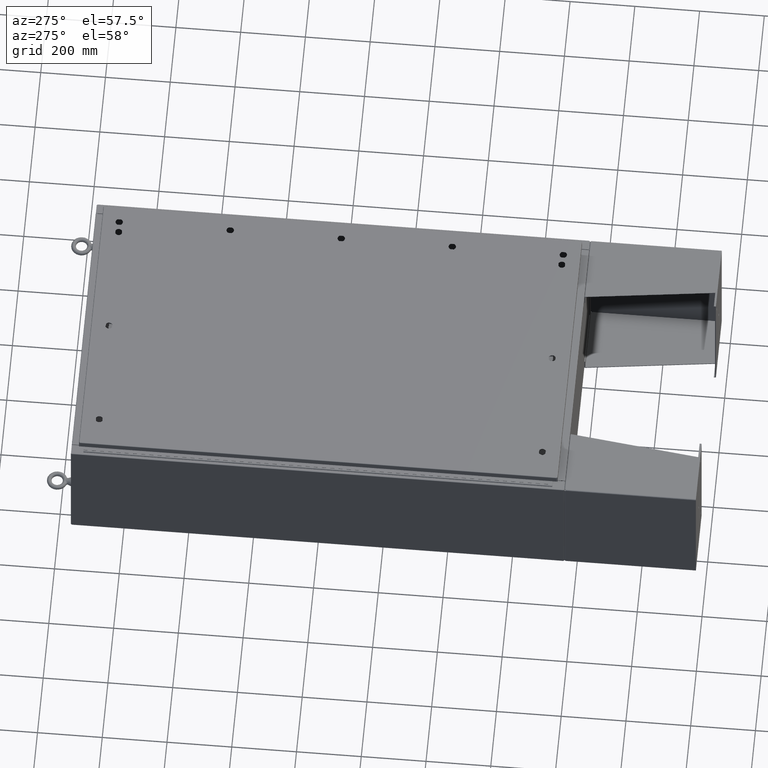
[diagram: clean part render]
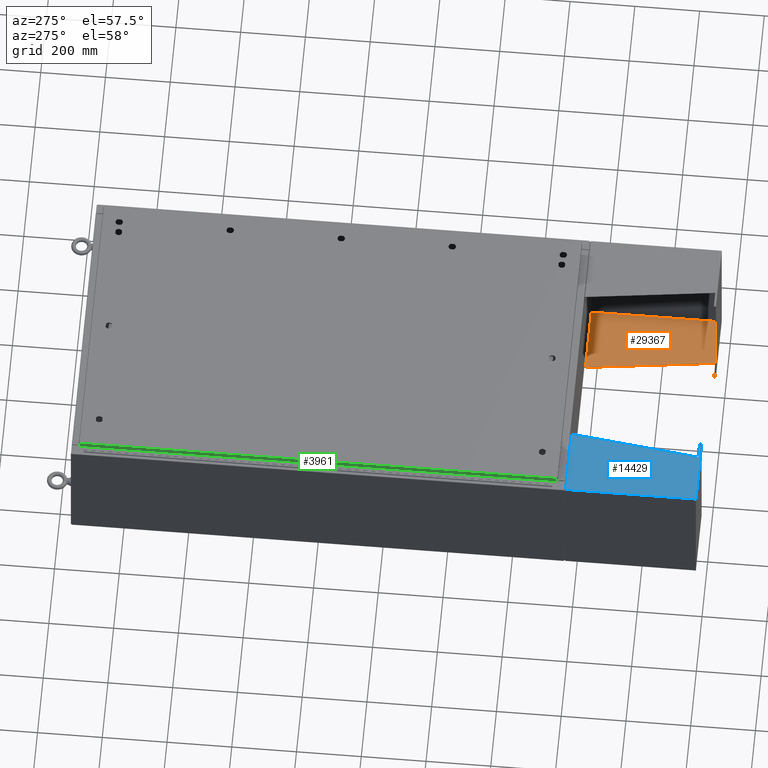
[diagram: same view with three faces highlighted in distinct colors, each labeled with its STEP entity id]
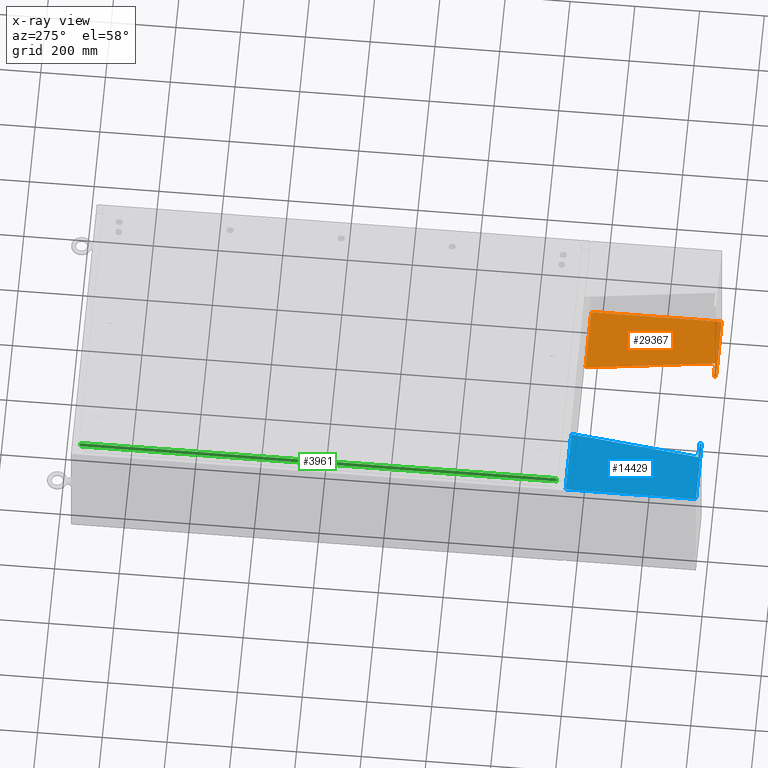
[diagram: x-ray of the same camera — body ghosted, the three highlighted faces saturated]
A machine part, auxiliary view with three faces highlighted in distinct colors.
The next image is the same camera in x-ray (body ghosted, the three faces saturated) — at least one of them is partly hidden behind the body in this view.
Their STEP definitions:

[orange] entity #29367 — the highlighted planar face has unit normal (-0, 0, 1).
#1846 = VECTOR ( 'NONE', #28815, 39.37007874015748100 ) ;
#5492 = VECTOR ( 'NONE', #42573, 39.37007874015748100 ) ;
#12509 = DIRECTION ( 'NONE',  ( -3.550958521948298200E-015, -0.0000000000000000000, 1.000000000000000000 ) ) ;
#14444 = EDGE_CURVE ( 'NONE', #19746, #62508, #41747, .T. ) ;
#14600 = VECTOR ( 'NONE', #58069, 39.37007874015748100 ) ;
#15079 = ORIENTED_EDGE ( 'NONE', *, *, #18576, .F. ) ;
#15661 = ORIENTED_EDGE ( 'NONE', *, *, #36336, .F. ) ;
#18209 = CARTESIAN_POINT ( 'NONE',  ( -7.896000000000027400, 8.000000000000001800, 8.000999999999999400 ) ) ;
#18576 = EDGE_CURVE ( 'NONE', #28031, #45724, #38566, .T. ) ;
#19099 = CARTESIAN_POINT ( 'NONE',  ( -7.896000000000027400, -7.749999999999999100, 8.001000000000006600 ) ) ;
#19685 = CARTESIAN_POINT ( 'NONE',  ( -7.896000000000027400, -7.749999999999999100, 8.001000000000006600 ) ) ;
#19746 = VERTEX_POINT ( 'NONE', #48947 ) ;
#22287 = DIRECTION ( 'NONE',  ( 0.0000000000000000000, 0.0000000000000000000, -1.000000000000000000 ) ) ;
#22518 = EDGE_LOOP ( 'NONE', ( #24888, #15661, #37722, #33450, #15079, #53706 ) ) ;
#23055 = DIRECTION ( 'NONE',  ( 3.550958521948298200E-015, 0.0000000000000000000, -1.000000000000000000 ) ) ;
#24888 = ORIENTED_EDGE ( 'NONE', *, *, #14444, .F. ) ;
#26339 = VERTEX_POINT ( 'NONE', #46697 ) ;
#26830 = CARTESIAN_POINT ( 'NONE',  ( -7.896000000000027400, -7.999999999999999100, 8.000999999999999400 ) ) ;
#28031 = VERTEX_POINT ( 'NONE', #61387 ) ;
#28815 = DIRECTION ( 'NONE',  ( 3.550958521948298200E-015, 0.0000000000000000000, -1.000000000000000000 ) ) ;
#29367 = ADVANCED_FACE ( 'NONE', ( #39105 ), #42258, .T. ) ;
#33342 = EDGE_CURVE ( 'NONE', #45724, #26339, #58153, .T. ) ;
#33450 = ORIENTED_EDGE ( 'NONE', *, *, #33342, .F. ) ;
#35210 = VECTOR ( 'NONE', #22287, 39.37007874015748100 ) ;
#36336 = EDGE_CURVE ( 'NONE', #51505, #19746, #38716, .T. ) ;
#37722 = ORIENTED_EDGE ( 'NONE', *, *, #60582, .F. ) ;
#38566 = LINE ( 'NONE', #41980, #61380 ) ;
#38716 = LINE ( 'NONE', #19099, #1846 ) ;
#39105 = FACE_OUTER_BOUND ( 'NONE', #22518, .T. ) ;
#39670 = DIRECTION ( 'NONE',  ( 0.0000000000000000000, -1.000000000000000000, 0.0000000000000000000 ) ) ;
#41512 = CARTESIAN_POINT ( 'NONE',  ( -7.896000000000013200, 7.857000000000001100, 8.000999999999999400 ) ) ;
#41747 = LINE ( 'NONE', #50449, #14600 ) ;
#41980 = CARTESIAN_POINT ( 'NONE',  ( -7.895999999999999000, 8.000000000000001800, 0.03900000000000031900 ) ) ;
#42258 = PLANE ( 'NONE',  #48746 ) ;
#42573 = DIRECTION ( 'NONE',  ( -0.0000000000000000000, 1.000000000000000000, -0.0000000000000000000 ) ) ;
#43908 = LINE ( 'NONE', #61950, #5492 ) ;
#45063 = CARTESIAN_POINT ( 'NONE',  ( -7.895999999999998100, -7.999999999999999100, 0.03899999999999813300 ) ) ;
#45724 = VERTEX_POINT ( 'NONE', #45063 ) ;
#46697 = CARTESIAN_POINT ( 'NONE',  ( -7.896000000000027400, -7.999999999999999100, 8.000999999999999400 ) ) ;
#48085 = LINE ( 'NONE', #41512, #35210 ) ;
#48746 = AXIS2_PLACEMENT_3D ( 'NONE', #18209, #52063, #23055 ) ;
#48947 = CARTESIAN_POINT ( 'NONE',  ( -7.896000000000019400, -7.749999999999999100, 6.052216497445928500 ) ) ;
#50449 = CARTESIAN_POINT ( 'NONE',  ( -7.896000000000019400, -7.749999999999999100, 6.052216497445928500 ) ) ;
#51505 = VERTEX_POINT ( 'NONE', #19685 ) ;
#52063 = DIRECTION ( 'NONE',  ( 1.000000000000000000, 0.0000000000000000000, 3.550958521948298200E-015 ) ) ;
#53706 = ORIENTED_EDGE ( 'NONE', *, *, #57543, .F. ) ;
#55186 = CARTESIAN_POINT ( 'NONE',  ( -7.896000000000013200, 7.857000000000001100, 8.000999999999999400 ) ) ;
#56602 = VECTOR ( 'NONE', #12509, 39.37007874015748100 ) ;
#57543 = EDGE_CURVE ( 'NONE', #62508, #28031, #48085, .T. ) ;
#58069 = DIRECTION ( 'NONE',  ( -4.399772607369800400E-016, 0.9922942345449394800, 0.1239038017531047900 ) ) ;
#58153 = LINE ( 'NONE', #26830, #56602 ) ;
#60582 = EDGE_CURVE ( 'NONE', #26339, #51505, #43908, .T. ) ;
#61380 = VECTOR ( 'NONE', #39670, 39.37007874015748100 ) ;
#61387 = CARTESIAN_POINT ( 'NONE',  ( -7.895999999999998100, 7.857000000000002000, 0.03900000000000031900 ) ) ;
#61950 = CARTESIAN_POINT ( 'NONE',  ( -7.896000000000027400, 8.000000000000001800, 8.000999999999999400 ) ) ;
#62508 = VERTEX_POINT ( 'NONE', #55186 ) ;

[blue] entity #14429 — the highlighted planar face has unit normal (0, 0, -1).
#224 = LINE ( 'NONE', #42379, #24269 ) ;
#247 = ORIENTED_EDGE ( 'NONE', *, *, #17949, .T. ) ;
#498 = EDGE_CURVE ( 'NONE', #42871, #12006, #23016, .T. ) ;
#2733 = LINE ( 'NONE', #8528, #52560 ) ;
#3348 = FACE_OUTER_BOUND ( 'NONE', #39217, .T. ) ;
#8139 = PLANE ( 'NONE',  #56673 ) ;
#8528 = CARTESIAN_POINT ( 'NONE',  ( -8.000000000000026600, 8.000000000000001800, 8.000999999999997700 ) ) ;
#11132 = EDGE_CURVE ( 'NONE', #42871, #35682, #25113, .T. ) ;
#11607 = CARTESIAN_POINT ( 'NONE',  ( -8.000000000000026600, 8.000000000000001800, 8.000999999999997700 ) ) ;
#12006 = VERTEX_POINT ( 'NONE', #24601 ) ;
#12568 = DIRECTION ( 'NONE',  ( -3.550958521948298200E-015, 0.0000000000000000000, 1.000000000000000000 ) ) ;
#14429 = ADVANCED_FACE ( 'NONE', ( #3348 ), #8139, .F. ) ;
#14442 = DIRECTION ( 'NONE',  ( 1.000000000000000000, 0.0000000000000000000, 3.550958521948298200E-015 ) ) ;
#15429 = ORIENTED_EDGE ( 'NONE', *, *, #57705, .T. ) ;
#15768 = CARTESIAN_POINT ( 'NONE',  ( -7.999999999999999100, -7.999999999999999100, 0.03899999999999813300 ) ) ;
#17949 = EDGE_CURVE ( 'NONE', #30675, #28960, #224, .T. ) ;
#22534 = CARTESIAN_POINT ( 'NONE',  ( -8.000000000000012400, 7.857000000000001100, 8.000999999999997700 ) ) ;
#23016 = LINE ( 'NONE', #45958, #32885 ) ;
#24269 = VECTOR ( 'NONE', #42156, 39.37007874015748100 ) ;
#24601 = CARTESIAN_POINT ( 'NONE',  ( -8.000000000000026600, -7.999999999999999100, 8.000999999999997700 ) ) ;
#25113 = LINE ( 'NONE', #62316, #60807 ) ;
#27476 = ORIENTED_EDGE ( 'NONE', *, *, #11132, .F. ) ;
#28960 = VERTEX_POINT ( 'NONE', #53852 ) ;
#29672 = CARTESIAN_POINT ( 'NONE',  ( -8.000000000000026600, -7.750000000000000000, 8.001000000000006600 ) ) ;
#30675 = VERTEX_POINT ( 'NONE', #29672 ) ;
#32885 = VECTOR ( 'NONE', #12568, 39.37007874015748100 ) ;
#33415 = VECTOR ( 'NONE', #51543, 39.37007874015748100 ) ;
#34052 = CARTESIAN_POINT ( 'NONE',  ( -8.000000000000026600, 7.857000000000001100, 8.000999999999997700 ) ) ;
#35682 = VERTEX_POINT ( 'NONE', #48372 ) ;
#39046 = EDGE_CURVE ( 'NONE', #12006, #30675, #2733, .T. ) ;
#39217 = EDGE_LOOP ( 'NONE', ( #247, #15429, #39978, #27476, #46800, #46708 ) ) ;
#39978 = ORIENTED_EDGE ( 'NONE', *, *, #59650, .T. ) ;
#42156 = DIRECTION ( 'NONE',  ( 3.550958521948298200E-015, 0.0000000000000000000, -1.000000000000000000 ) ) ;
#42379 = CARTESIAN_POINT ( 'NONE',  ( -8.000000000000026600, -7.750000000000000000, 8.000999999999997700 ) ) ;
#42871 = VERTEX_POINT ( 'NONE', #15768 ) ;
#45958 = CARTESIAN_POINT ( 'NONE',  ( -8.000000000000026600, -7.999999999999999100, 8.000999999999997700 ) ) ;
#46101 = VERTEX_POINT ( 'NONE', #34052 ) ;
#46708 = ORIENTED_EDGE ( 'NONE', *, *, #39046, .T. ) ;
#46800 = ORIENTED_EDGE ( 'NONE', *, *, #498, .T. ) ;
#48372 = CARTESIAN_POINT ( 'NONE',  ( -8.000000000000012400, 7.857000000000001100, 0.03900000000000469100 ) ) ;
#51543 = DIRECTION ( 'NONE',  ( 0.0000000000000000000, 0.0000000000000000000, -1.000000000000000000 ) ) ;
#51846 = VECTOR ( 'NONE', #58131, 39.37007874015748100 ) ;
#52560 = VECTOR ( 'NONE', #61821, 39.37007874015748100 ) ;
#53218 = CARTESIAN_POINT ( 'NONE',  ( -8.000000000000019500, -7.749999999999999100, 6.052216497445926700 ) ) ;
#53359 = DIRECTION ( 'NONE',  ( 3.550958521948298200E-015, 0.0000000000000000000, -1.000000000000000000 ) ) ;
#53852 = CARTESIAN_POINT ( 'NONE',  ( -8.000000000000019500, -7.750000000000000000, 6.052216497445926700 ) ) ;
#54961 = LINE ( 'NONE', #53218, #51846 ) ;
#56673 = AXIS2_PLACEMENT_3D ( 'NONE', #11607, #14442, #53359 ) ;
#57705 = EDGE_CURVE ( 'NONE', #28960, #46101, #54961, .T. ) ;
#58131 = DIRECTION ( 'NONE',  ( -4.399772607369800400E-016, 0.9922942345449394800, 0.1239038017531047900 ) ) ;
#58488 = DIRECTION ( 'NONE',  ( 0.0000000000000000000, 1.000000000000000000, 0.0000000000000000000 ) ) ;
#59226 = LINE ( 'NONE', #22534, #33415 ) ;
#59650 = EDGE_CURVE ( 'NONE', #46101, #35682, #59226, .T. ) ;
#60807 = VECTOR ( 'NONE', #58488, 39.37007874015748100 ) ;
#61821 = DIRECTION ( 'NONE',  ( 0.0000000000000000000, 1.000000000000000000, 0.0000000000000000000 ) ) ;
#62316 = CARTESIAN_POINT ( 'NONE',  ( -7.999999999999999100, 8.000000000000001800, 0.03899999999999923000 ) ) ;

[green] entity #3961 — the highlighted planar face has unit normal (1, -0, -0).
#792 = CARTESIAN_POINT ( 'NONE',  ( -17.07799999999999600, 1.282862446849468500E-015, 5.207755671951099000E-014 ) ) ;
#2196 = ORIENTED_EDGE ( 'NONE', *, *, #32044, .T. ) ;
#2363 = AXIS2_PLACEMENT_3D ( 'NONE', #792, #16119, #47233 ) ;
#3894 = DIRECTION ( 'NONE',  ( -7.511783855542057500E-017, -1.000000000000000000, -7.511783855542072300E-017 ) ) ;
#3961 = ADVANCED_FACE ( 'NONE', ( #54282 ), #27944, .F. ) ;
#7007 = EDGE_CURVE ( 'NONE', #59186, #48810, #34430, .T. ) ;
#7180 = CARTESIAN_POINT ( 'NONE',  ( -17.07799999999999900, -29.00515786437626500, -0.08769999999999787700 ) ) ;
#12793 = DIRECTION ( 'NONE',  ( -3.034122441942816100E-015, 6.982962677686265900E-015, -1.000000000000000000 ) ) ;
#13784 = CARTESIAN_POINT ( 'NONE',  ( -17.07799999999999600, 29.00515786437626500, -0.7949999999999926000 ) ) ;
#16119 = DIRECTION ( 'NONE',  ( 1.000000000000000000, -7.511783855542035400E-017, -3.034122441942816500E-015 ) ) ;
#21507 = VECTOR ( 'NONE', #3894, 39.37007874015748100 ) ;
#21897 = DIRECTION ( 'NONE',  ( -3.034122441942816100E-015, 6.982962677686265900E-015, -1.000000000000000000 ) ) ;
#22275 = DIRECTION ( 'NONE',  ( 7.511783855542072300E-017, 1.000000000000000000, 1.220664876525586700E-016 ) ) ;
#27694 = CARTESIAN_POINT ( 'NONE',  ( -17.07799999999999600, 29.00515786437626500, -0.08769999999999567000 ) ) ;
#27944 = PLANE ( 'NONE',  #2363 ) ;
#28945 = CARTESIAN_POINT ( 'NONE',  ( -17.07800000000000300, -29.00515786437626200, -0.7949999999999996000 ) ) ;
#31051 = CARTESIAN_POINT ( 'NONE',  ( -17.07799999999999900, -29.09400000000000100, -0.08770000000000004200 ) ) ;
#32044 = EDGE_CURVE ( 'NONE', #59186, #61596, #46739, .T. ) ;
#32180 = VECTOR ( 'NONE', #12793, 39.37007874015748100 ) ;
#32340 = VECTOR ( 'NONE', #21897, 39.37007874015748100 ) ;
#34188 = EDGE_CURVE ( 'NONE', #48810, #39151, #58042, .T. ) ;
#34430 = LINE ( 'NONE', #31051, #21507 ) ;
#34704 = ORIENTED_EDGE ( 'NONE', *, *, #34188, .F. ) ;
#36322 = CARTESIAN_POINT ( 'NONE',  ( -17.07799999999999600, 29.00515786437626500, 2.546194915468487600E-013 ) ) ;
#37465 = EDGE_LOOP ( 'NONE', ( #38945, #2196, #52821, #34704 ) ) ;
#38945 = ORIENTED_EDGE ( 'NONE', *, *, #7007, .F. ) ;
#39151 = VERTEX_POINT ( 'NONE', #28945 ) ;
#41697 = CARTESIAN_POINT ( 'NONE',  ( -17.07799999999999900, -29.00515786437626500, -0.07469999999999976700 ) ) ;
#44881 = VECTOR ( 'NONE', #22275, 39.37007874015748100 ) ;
#46428 = CARTESIAN_POINT ( 'NONE',  ( -17.07800000000000300, -29.09400000000000100, -0.7949999999999997100 ) ) ;
#46739 = LINE ( 'NONE', #36322, #32340 ) ;
#47233 = DIRECTION ( 'NONE',  ( -3.034122441942816500E-015, 0.0000000000000000000, -1.000000000000000000 ) ) ;
#48810 = VERTEX_POINT ( 'NONE', #7180 ) ;
#52732 = EDGE_CURVE ( 'NONE', #39151, #61596, #57887, .T. ) ;
#52821 = ORIENTED_EDGE ( 'NONE', *, *, #52732, .F. ) ;
#54282 = FACE_OUTER_BOUND ( 'NONE', #37465, .T. ) ;
#57887 = LINE ( 'NONE', #46428, #44881 ) ;
#58042 = LINE ( 'NONE', #41697, #32180 ) ;
#59186 = VERTEX_POINT ( 'NONE', #27694 ) ;
#61596 = VERTEX_POINT ( 'NONE', #13784 ) ;